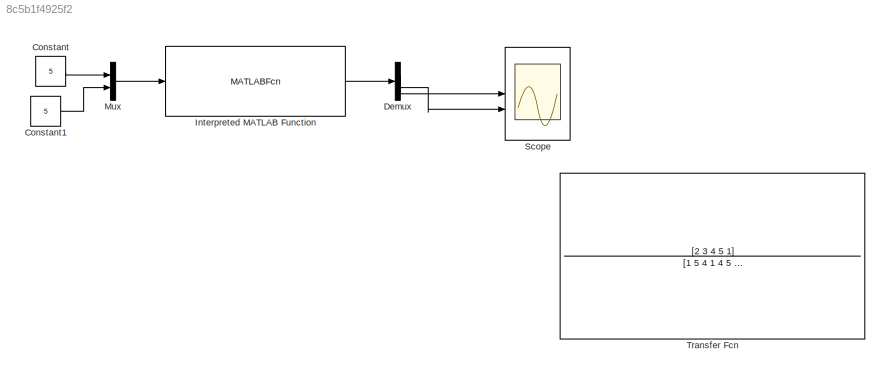
MODEL slx_8c5b1f4925f2
KIND model
CONFIG AbsTol = auto
CONFIG EnableMultiTasking = off
CONFIG FixedStep = auto
CONFIG MaxStep = auto
CONFIG MinStep = auto
CONFIG RelTol = 1e-3
CONFIG SampleTimeConstraint = Unconstrained
CONFIG SolverName = VariableStepAuto
CONFIG StartTime = 0.0
CONFIG StopTime = 10.0
BLOCK [Constant] Constant
  OutDataTypeStr = double
  Value = 5
BLOCK [Constant] Constant1
  OutDataTypeStr = double
  Value = 5
BLOCK [Demux] Demux
  Outputs = 2
BLOCK [MATLABFcn] Interpreted MATLAB Function
  MATLABFcn = Hello___Matlab (x,y)
BLOCK [Mux] Mux
  DisplayOption = bar
  Inputs = 2
BLOCK [Scope] Scope
  Floating = off
  NumInputPorts = 2
  ScopeSpecificationString = Simulink.scopes.TimeScopeBlockCfg('CurrentConfiguration', extmgr.ConfigurationSet(extmgr.Configuration('Core','General UI',true),extmgr.Configuration('Core','Source UI',true),extmgr.Configuration('Sources','WiredSimulink',true),extmgr.Configuration('Visuals','Time Domain',true,'SerializedDisplays',{struct('MinYLimReal','-10','MaxYLimReal','10','YLabelReal','','MinYLimMag','0','MaxYLimMag','10','Le...<+884ch>
BLOCK [TransferFcn] Transfer Fcn
  Commented = on
  Denominator = [1 5 4 1 4 5 6 45 ]
  Numerator = [2 3 4 5 1]
LINE Constant1:1 -> Mux:2
LINE Constant:1 -> Mux:1
LINE Demux:1 -> Scope:1
LINE Demux:2 -> Scope:2
LINE Interpreted MATLAB Function:1 -> Demux:1
LINE Mux:1 -> Interpreted MATLAB Function:1
